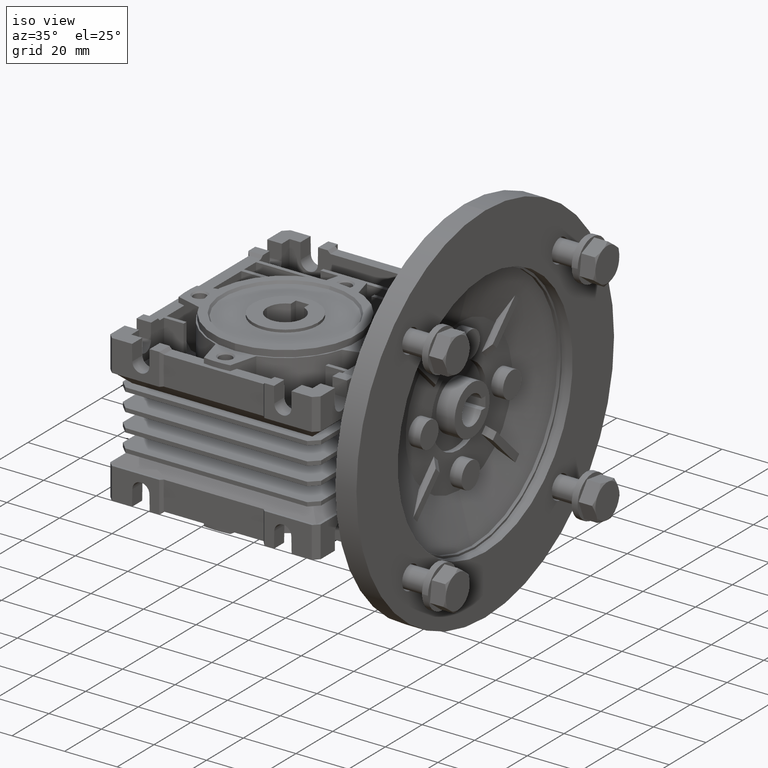
[diagram: clean part render]
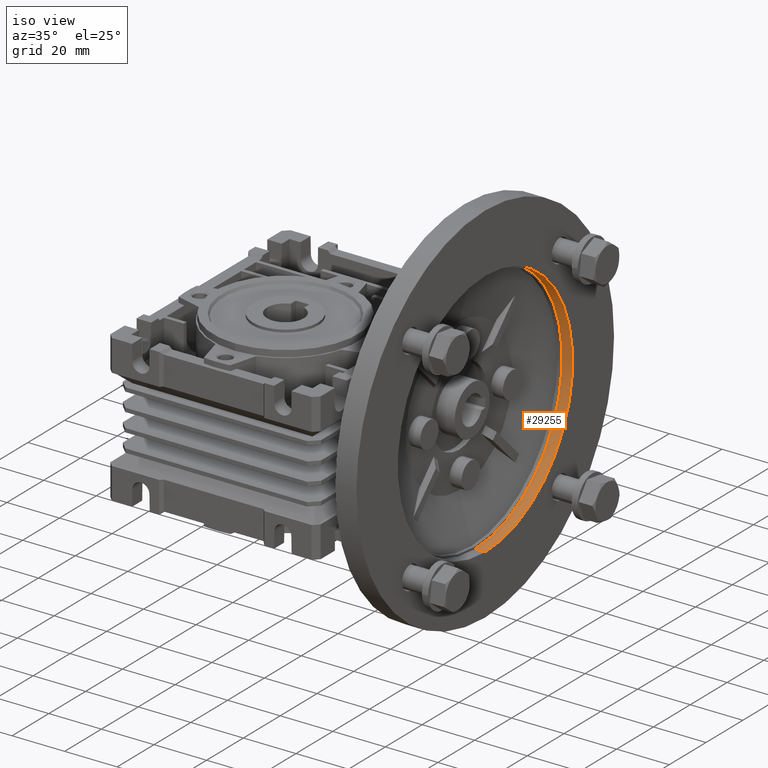
[diagram: same view with one face highlighted and labeled with its STEP entity id]
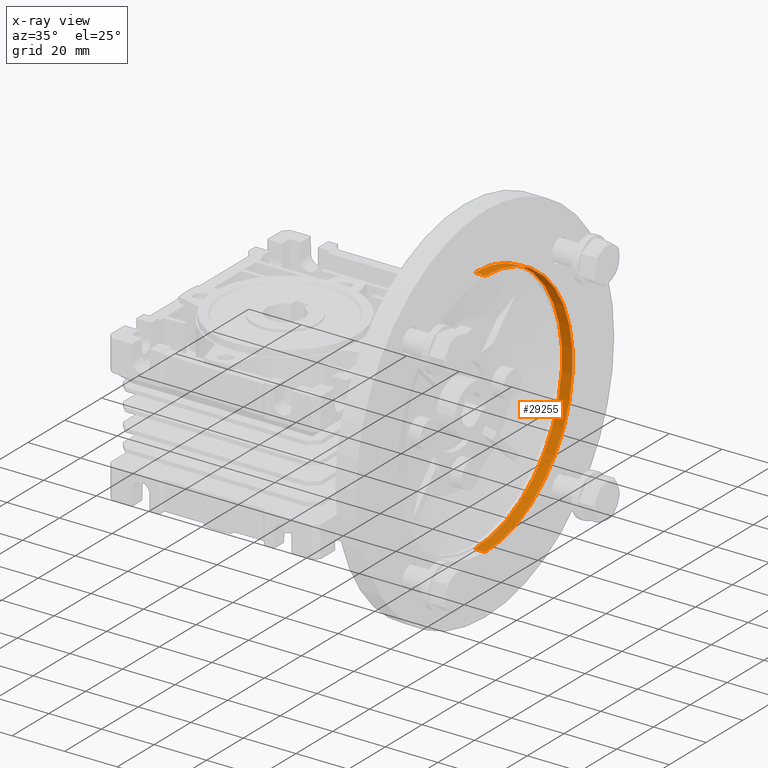
[diagram: x-ray of the same camera — body ghosted, the highlighted face saturated]
A machine part, iso view. The second image highlights one B-rep face of the part: STEP entity #29255.
The next image is the same camera in x-ray: the body ghosted, the highlighted face saturated — about 0% of this face is hidden behind the body in this view.
In plain terms, the highlighted cylindrical surface (partial cylindrical patch) has radius 47.5 mm, axis along (-1, 0, 0).
Its self-contained STEP definition (entity closure, byte-faithful):
#23 = CARTESIAN_POINT ( 'NONE',  ( 51.00000000000000711, 30.00000000000000000, 47.50000000000000000 ) ) ;
#765 = DIRECTION ( 'NONE',  ( 0.000000000000000000, 0.000000000000000000, 1.000000000000000000 ) ) ;
#1869 = ORIENTED_EDGE ( 'NONE', *, *, #14325, .T. ) ;
#2914 = VECTOR ( 'NONE', #13522, 1000.000000000000000 ) ;
#3222 = CIRCLE ( 'NONE', #11538, 47.50000000000000000 ) ;
#4712 = CARTESIAN_POINT ( 'NONE',  ( 55.00000000000000711, 30.00000000000000000, 0.000000000000000000 ) ) ;
#5024 = DIRECTION ( 'NONE',  ( 0.000000000000000000, 0.000000000000000000, 1.000000000000000000 ) ) ;
#5037 = DIRECTION ( 'NONE',  ( 1.000000000000000000, 0.000000000000000000, 0.000000000000000000 ) ) ;
#5880 = LINE ( 'NONE', #15615, #2914 ) ;
#6042 = DIRECTION ( 'NONE',  ( -1.000000000000000000, 0.000000000000000000, 0.000000000000000000 ) ) ;
#6058 = VERTEX_POINT ( 'NONE', #23 ) ;
#7293 = CYLINDRICAL_SURFACE ( 'NONE', #16711, 47.50000000000000000 ) ;
#7370 = AXIS2_PLACEMENT_3D ( 'NONE', #4712, #5037, #7473 ) ;
#7460 = FACE_OUTER_BOUND ( 'NONE', #14315, .T. ) ;
#7473 = DIRECTION ( 'NONE',  ( 0.000000000000000000, 0.000000000000000000, 1.000000000000000000 ) ) ;
#8191 = ORIENTED_EDGE ( 'NONE', *, *, #25185, .T. ) ;
#8193 = EDGE_CURVE ( 'NONE', #25013, #6058, #3222, .T. ) ;
#8404 = VERTEX_POINT ( 'NONE', #30800 ) ;
#10019 = VERTEX_POINT ( 'NONE', #17331 ) ;
#11538 = AXIS2_PLACEMENT_3D ( 'NONE', #25289, #27876, #765 ) ;
#12391 = CARTESIAN_POINT ( 'NONE',  ( 51.00000000000000711, 30.00000000000000711, -47.50000000000000000 ) ) ;
#13522 = DIRECTION ( 'NONE',  ( -1.000000000000000000, 0.000000000000000000, 0.000000000000000000 ) ) ;
#14315 = EDGE_LOOP ( 'NONE', ( #16601, #1869, #8191, #29587 ) ) ;
#14320 = VECTOR ( 'NONE', #6042, 1000.000000000000000 ) ;
#14325 = EDGE_CURVE ( 'NONE', #10019, #8404, #15146, .T. ) ;
#15146 = CIRCLE ( 'NONE', #7370, 47.50000000000000000 ) ;
#15615 = CARTESIAN_POINT ( 'NONE',  ( 55.00000000000000711, 30.00000000000000000, 47.50000000000000000 ) ) ;
#16601 = ORIENTED_EDGE ( 'NONE', *, *, #24487, .F. ) ;
#16711 = AXIS2_PLACEMENT_3D ( 'NONE', #17856, #19629, #5024 ) ;
#17331 = CARTESIAN_POINT ( 'NONE',  ( 55.00000000000000711, 30.00000000000000711, -47.50000000000000000 ) ) ;
#17856 = CARTESIAN_POINT ( 'NONE',  ( 55.00000000000000711, 30.00000000000000000, 0.000000000000000000 ) ) ;
#19629 = DIRECTION ( 'NONE',  ( -1.000000000000000000, 0.000000000000000000, 0.000000000000000000 ) ) ;
#23403 = CARTESIAN_POINT ( 'NONE',  ( 55.00000000000000711, 30.00000000000000711, -47.50000000000000000 ) ) ;
#24487 = EDGE_CURVE ( 'NONE', #10019, #25013, #26004, .T. ) ;
#25013 = VERTEX_POINT ( 'NONE', #12391 ) ;
#25185 = EDGE_CURVE ( 'NONE', #8404, #6058, #5880, .T. ) ;
#25289 = CARTESIAN_POINT ( 'NONE',  ( 51.00000000000000711, 30.00000000000000000, 0.000000000000000000 ) ) ;
#26004 = LINE ( 'NONE', #23403, #14320 ) ;
#27876 = DIRECTION ( 'NONE',  ( 1.000000000000000000, 0.000000000000000000, 0.000000000000000000 ) ) ;
#29255 = ADVANCED_FACE ( 'NONE', ( #7460 ), #7293, .F. ) ;
#29587 = ORIENTED_EDGE ( 'NONE', *, *, #8193, .F. ) ;
#30800 = CARTESIAN_POINT ( 'NONE',  ( 55.00000000000000711, 30.00000000000000000, 47.50000000000000000 ) ) ;